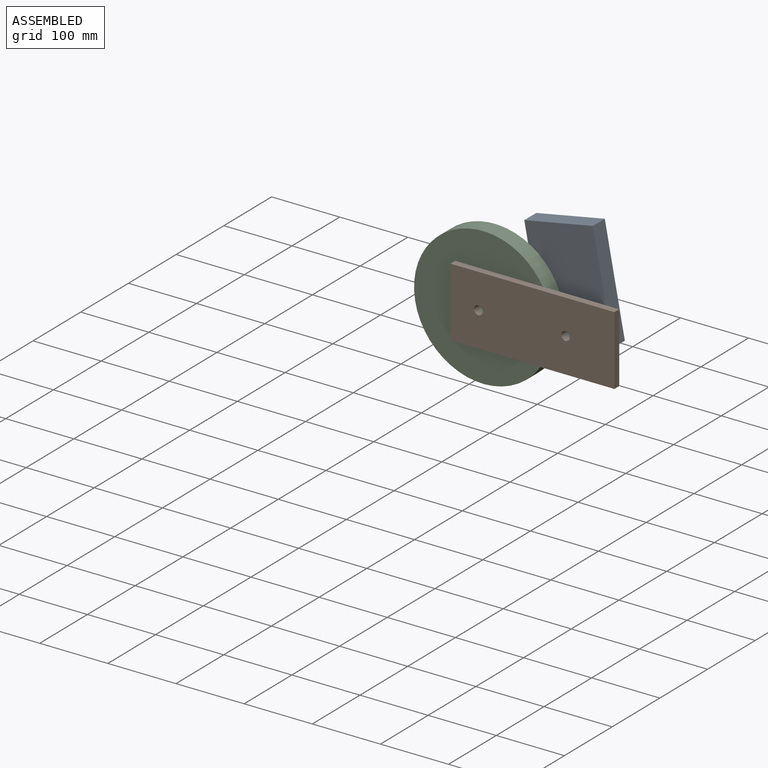
[diagram: assembled view]
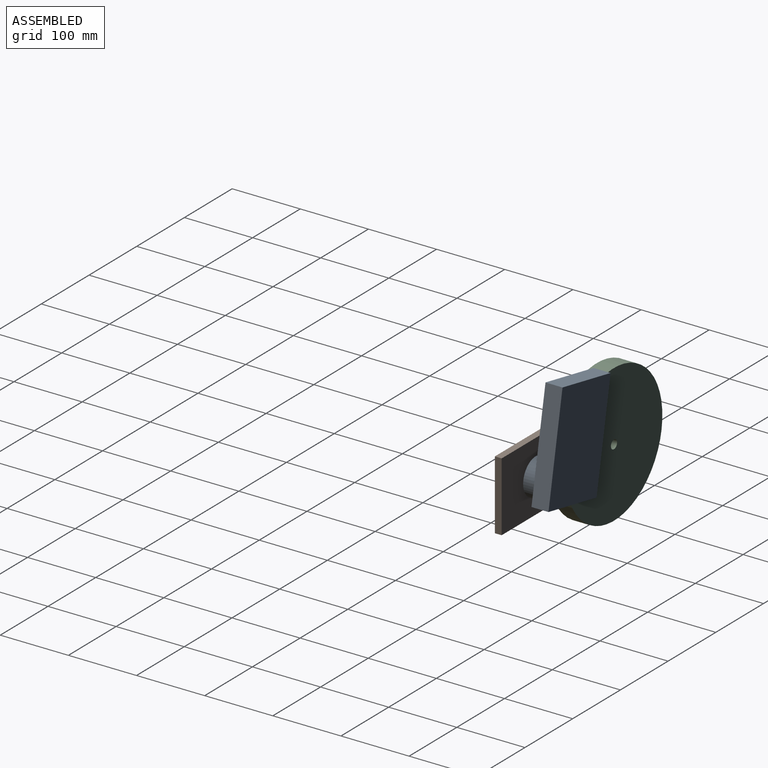
[diagram: assembled view, second angle]
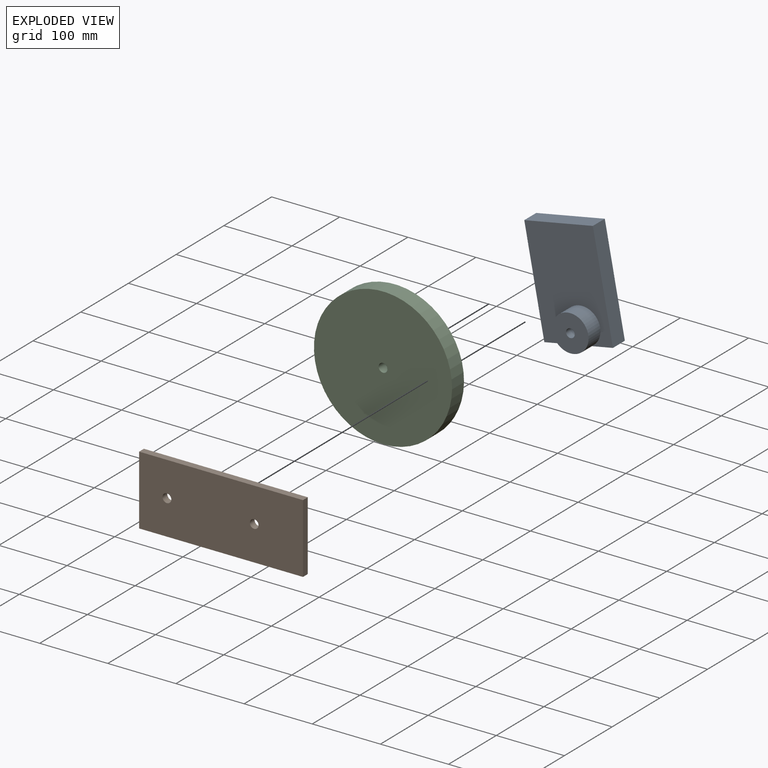
[diagram: exploded view]
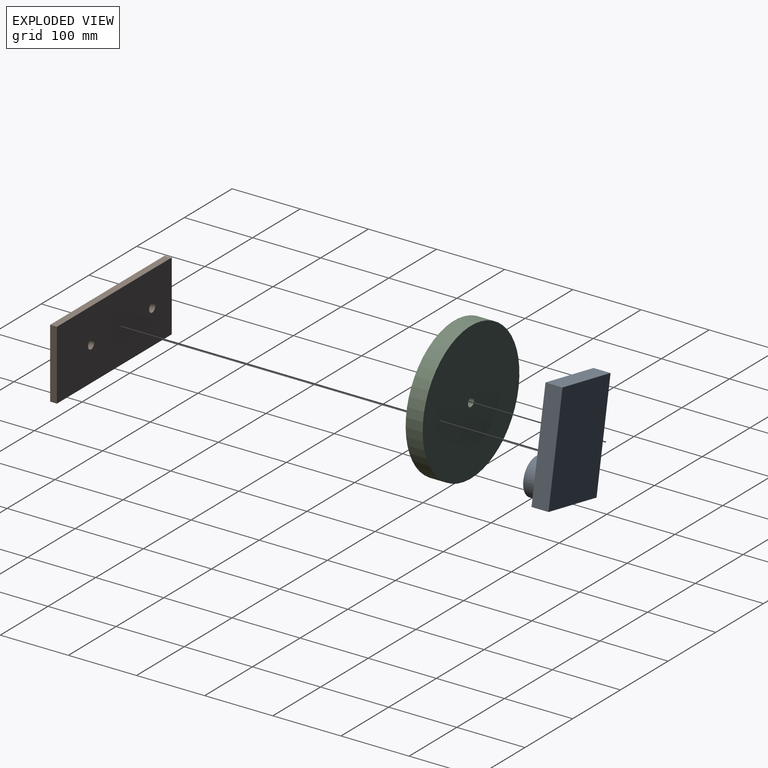
[diagram: exploded view, second angle]
ASSEMBLY  parts=3 mates=2
PART A: 11 faces, bbox 158.3x50x102.5 mm
  f0: cylinder r=6.37mm len=25mm, axis (0,-1,0), area 1000.2mm2, adj f3,f10
  f1: cylinder r=26.7mm len=53.39mm, axis (0,-1,0), area 4375.9mm2, adj f2,f3,f4,f9
  f2: plane 17.91x1.55mm, normal (0,1,0), area 18.6mm2, adj f1,f9
  f3: plane 53.39x53.39mm, normal (0,-1,0), area 2111.4mm2, adj f0,f1
  f4: plane 156.75x102.49mm, normal (0,-1,0), area 13844.5mm2, adj f1,f6,f7,f8,f9
  f5: plane 156.75x102.49mm, normal (0,1,0), area 16064.8mm2, adj f6,f7,f8,f9
  f6: plane 102.49x25mm, normal (1,0,0), area 2562.1mm2, adj f4,f5,f7,f8
  f7: plane 156.75x25mm, normal (0,0,1), area 3918.8mm2, adj f4,f5,f6,f9
  f8: plane 156.75x25mm, normal (0,0,-1), area 3918.8mm2, adj f4,f5,f6,f9
  f9: plane 102.49x25mm, normal (-1,0,0), area 2383.1mm2, adj f1,f2,f4,f5,f7,f8
  f10: plane 12.73x12.73mm, normal (0,-1,0), area 127.4mm2, adj f0
PART B: 8 faces, bbox 240.5x10x101.9 mm
  f0: plane 240.53x10mm, normal (0,0,-1), area 2405.3mm2, adj f1,f5,f6,f7
  f1: plane 101.88x10mm, normal (1,0,0), area 1018.8mm2, adj f0,f2,f6,f7
  f2: plane 240.53x10mm, normal (0,0,1), area 2405.3mm2, adj f1,f5,f6,f7
  f3: cylinder r=6.46mm len=12.91mm, axis (0,1,0), area 405.7mm2, adj f6,f7
  f4: cylinder r=6.37mm len=12.73mm, axis (0,1,0), area 400.1mm2, adj f6,f7
  f5: plane 101.88x10mm, normal (-1,0,0), area 1018.8mm2, adj f0,f2,f6,f7
  f6: plane 240.53x101.88mm, normal (0,-1,0), area 24246.6mm2, adj f0,f1,f2,f3,f4,f5
  f7: plane 240.53x101.88mm, normal (0,1,0), area 24246.6mm2, adj f0,f1,f2,f3,f4,f5
PART C: 4 faces, bbox 202.7x25x202.7 mm
  f0: cylinder r=101.36mm len=202.72mm, axis (0,-1,0), area 15921.2mm2, adj f2,f3
  f1: cylinder r=6.46mm len=25mm, axis (0,-1,0), area 1014.3mm2, adj f2,f3
  f2: plane 202.72x202.72mm, normal (0,1,0), area 32143.8mm2, adj f0,f1
  f3: plane 202.72x202.72mm, normal (0,-1,0), area 32143.8mm2, adj f0,f1
PLACE A rot(axis=(0,-1,0),100.8deg) t=(57.75,0,-47.76)mm
PLACE B at identity fixed
PLACE C rot(axis=(0,-1,0),129.6deg) t=(-130.05,0,61.21)mm
MATE revolute C.f1 <-> B.f3  axis (0,-1,0) through (-79.43,0,0)mm
MATE revolute B.f4 <-> A.f0  axis (0,1,0) through (48.63,0,0)mm
